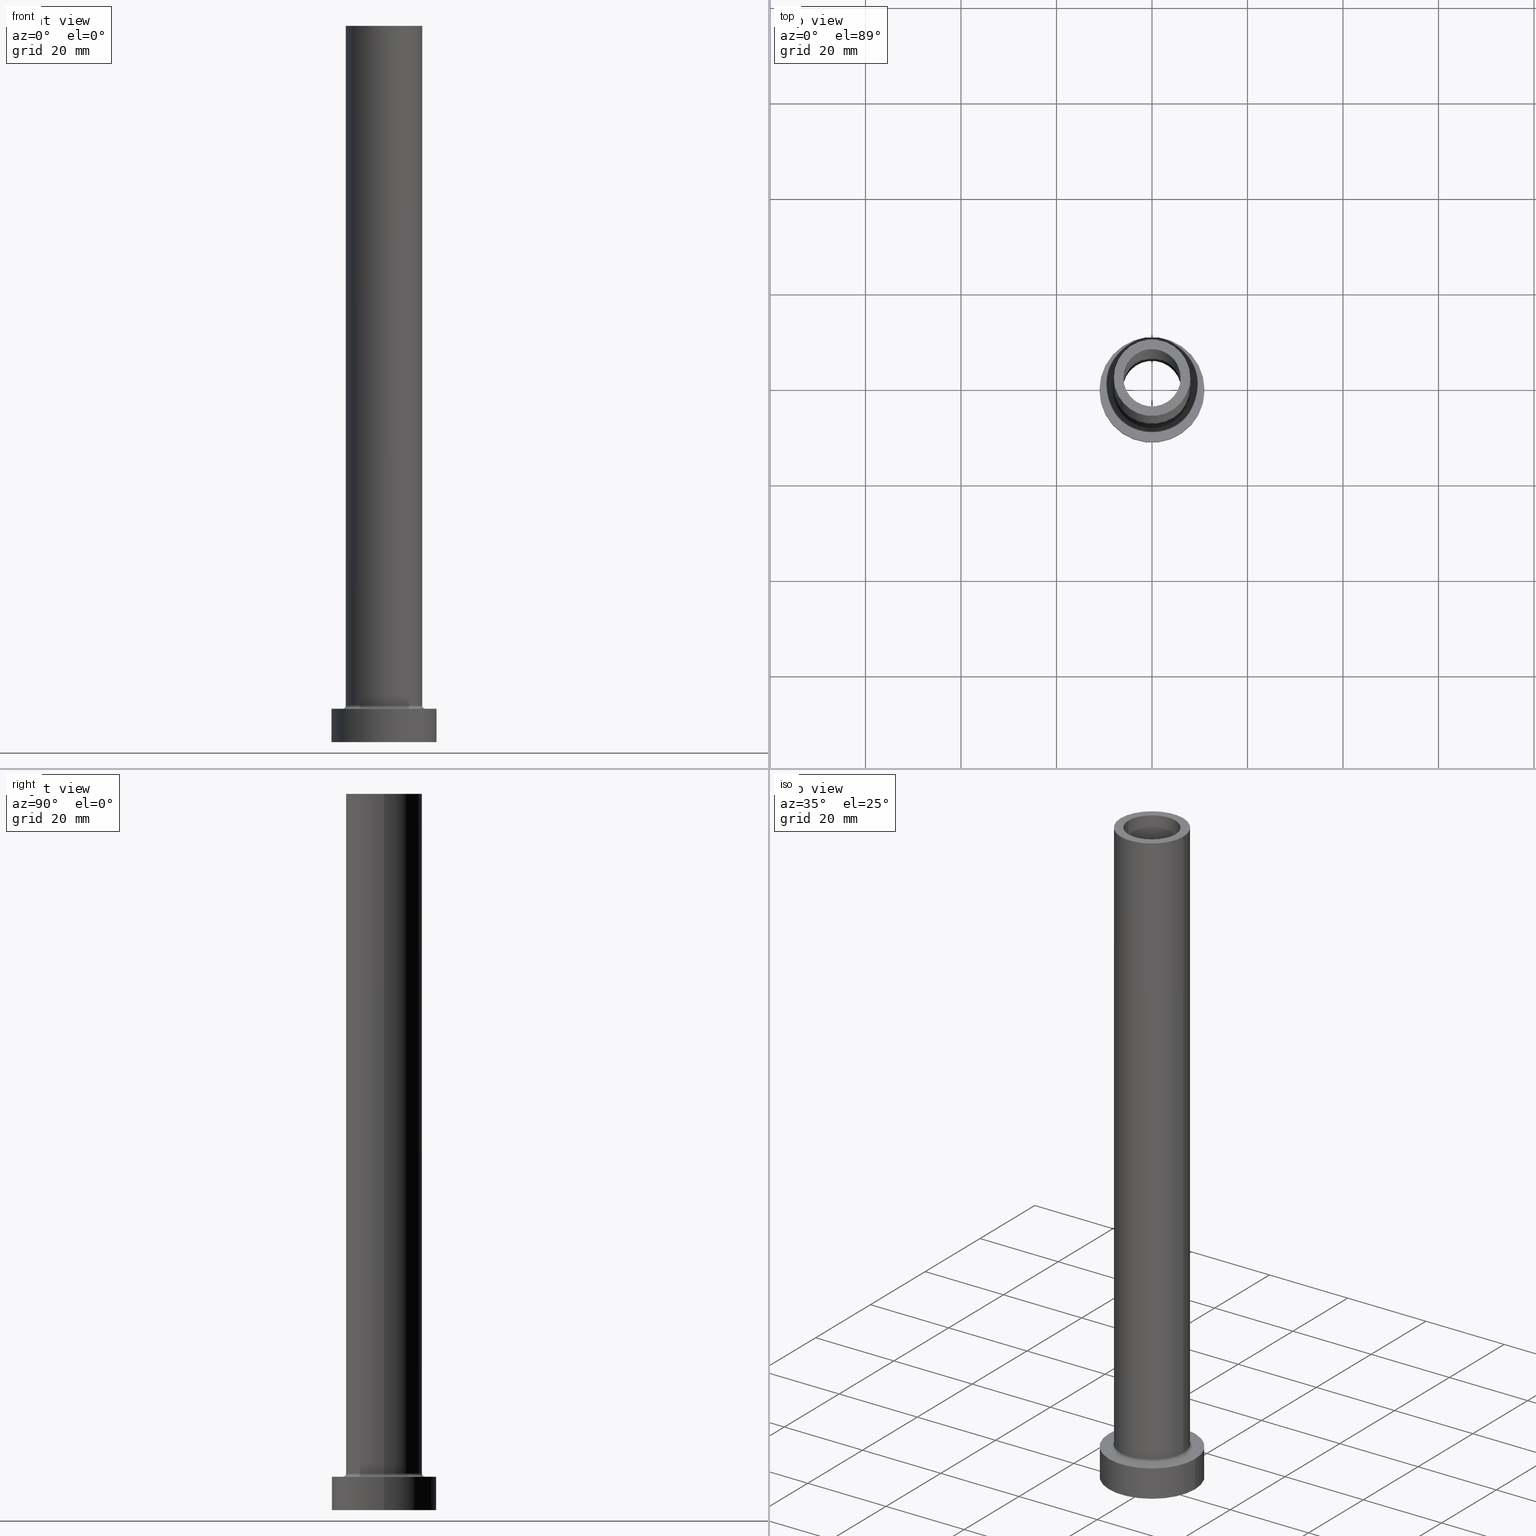
[diagram: canonical four-view strip — front | top / right | iso, engineering-drawing reading convention]
A machine part, canonical four-view strip (front | top / right | iso — engineering-drawing reading convention). The complete STEP part file that produces these views, byte-faithful:
ISO-10303-21;
HEADER;
FILE_DESCRIPTION (( 'STEP AP203' ),
    '1' );
FILE_NAME ('f595.STEP',
    '2023-02-13T09:08:36',
    ( '' ),
    ( '' ),
    'SwSTEP 2.0',
    'SolidWorks 2019',
    '' );
FILE_SCHEMA (( 'CONFIG_CONTROL_DESIGN' ));
ENDSEC;

DATA;
#1 = CARTESIAN_POINT ( 'NONE',  ( -6.000000000000000888, 0.000000000000000000, 150.0000000000000000 ) ) ;
#2 = APPLICATION_CONTEXT ( 'configuration controlled 3d designs of mechanical parts and assemblies' ) ;
#3 = AXIS2_PLACEMENT_3D ( 'NONE', #173, #224, #329 ) ;
#4 = DIRECTION ( 'NONE',  ( 0.000000000000000000, 0.000000000000000000, -1.000000000000000000 ) ) ;
#5 = CARTESIAN_POINT ( 'NONE',  ( -6.000000000000000888, 0.000000000000000000, 105.0000000000000000 ) ) ;
#6 = DATE_AND_TIME ( #33, #52 ) ;
#7 = DIRECTION ( 'NONE',  ( 1.000000000000000000, 0.000000000000000000, 0.000000000000000000 ) ) ;
#8 = VERTEX_POINT ( 'NONE', #444 ) ;
#9 = CARTESIAN_POINT ( 'NONE',  ( 0.000000000000000000, 0.000000000000000000, 0.000000000000000000 ) ) ;
#10 = ORIENTED_EDGE ( 'NONE', *, *, #281, .F. ) ;
#11 = ORIENTED_EDGE ( 'NONE', *, *, #316, .F. ) ;
#12 = DIRECTION ( 'NONE',  ( -0.000000000000000000, -0.000000000000000000, -1.000000000000000000 ) ) ;
#13 = CIRCLE ( 'NONE', #372, 0.7000000000000000666 ) ;
#14 = DIRECTION ( 'NONE',  ( 1.000000000000000000, 0.000000000000000000, 0.000000000000000000 ) ) ;
#15 = FACE_OUTER_BOUND ( 'NONE', #168, .T. ) ;
#16 = PERSON_AND_ORGANIZATION_ROLE ( 'creator' ) ;
#17 = EDGE_CURVE ( 'NONE', #146, #321, #232, .T. ) ;
#18 = FACE_OUTER_BOUND ( 'NONE', #368, .T. ) ;
#19 = COORDINATED_UNIVERSAL_TIME_OFFSET ( 1, 0, .AHEAD. ) ;
#20 = VECTOR ( 'NONE', #249, 1000.000000000000000 ) ;
#21 = DATE_AND_TIME ( #167, #119 ) ;
#22 = CIRCLE ( 'NONE', #182, 6.000000000000000888 ) ;
#23 = CARTESIAN_POINT ( 'NONE',  ( 0.000000000000000000, 0.000000000000000000, 150.0000000000000000 ) ) ;
#24 = COORDINATED_UNIVERSAL_TIME_OFFSET ( 1, 0, .AHEAD. ) ;
#25 = ORIENTED_EDGE ( 'NONE', *, *, #80, .F. ) ;
#26 = CARTESIAN_POINT ( 'NONE',  ( 0.000000000000000000, 0.000000000000000000, 150.0000000000000000 ) ) ;
#27 = ORIENTED_EDGE ( 'NONE', *, *, #231, .T. ) ;
#28 = PRODUCT_DEFINITION_FORMATION_WITH_SPECIFIED_SOURCE ( 'LIBOVOLN�', '', #131, .NOT_KNOWN. ) ;
#29 = CARTESIAN_POINT ( 'NONE',  ( 0.000000000000000000, 0.000000000000000000, 0.000000000000000000 ) ) ;
#30 = CALENDAR_DATE ( 2023, 13, 2 ) ;
#31 = AXIS2_PLACEMENT_3D ( 'NONE', #339, #12, #156 ) ;
#32 = CARTESIAN_POINT ( 'NONE',  ( 0.000000000000000000, 0.000000000000000000, 122.3948268171890703 ) ) ;
#33 = CALENDAR_DATE ( 2023, 13, 2 ) ;
#34 = CC_DESIGN_PERSON_AND_ORGANIZATION_ASSIGNMENT ( #328, #221, ( #195 ) ) ;
#35 = FACE_OUTER_BOUND ( 'NONE', #113, .T. ) ;
#36 = APPROVAL_STATUS ( 'not_yet_approved' ) ;
#37 = TOROIDAL_SURFACE ( 'NONE', #418, 8.699999999999999289, 0.6999999999999999556 ) ;
#38 = CIRCLE ( 'NONE', #84, 8.699999999999999289 ) ;
#39 = CARTESIAN_POINT ( 'NONE',  ( -6.150000000000000355, 0.000000000000000000, 105.0000000000000000 ) ) ;
#40 = ORIENTED_EDGE ( 'NONE', *, *, #152, .F. ) ;
#41 = CARTESIAN_POINT ( 'NONE',  ( 0.000000000000000000, 0.000000000000000000, 7.000000000000000000 ) ) ;
#42 = ORIENTED_EDGE ( 'NONE', *, *, #308, .F. ) ;
#43 = CARTESIAN_POINT ( 'NONE',  ( 11.00000000000000000, 1.347111479062088405E-15, 0.000000000000000000 ) ) ;
#44 = EDGE_LOOP ( 'NONE', ( #70, #153, #292, #172 ) ) ;
#45 = FACE_OUTER_BOUND ( 'NONE', #431, .T. ) ;
#46 = AXIS2_PLACEMENT_3D ( 'NONE', #26, #271, #375 ) ;
#47 = VERTEX_POINT ( 'NONE', #49 ) ;
#48 = EDGE_CURVE ( 'NONE', #110, #395, #75, .T. ) ;
#49 = CARTESIAN_POINT ( 'NONE',  ( -11.00000000000000000, 0.000000000000000000, 0.000000000000000000 ) ) ;
#50 = EDGE_CURVE ( 'NONE', #275, #401, #300, .T. ) ;
#51 = EDGE_LOOP ( 'NONE', ( #351, #25 ) ) ;
#52 = LOCAL_TIME ( 10, 8, 36.00000000000000000, #427 ) ;
#53 = VERTEX_POINT ( 'NONE', #115 ) ;
#54 = CARTESIAN_POINT ( 'NONE',  ( 6.000000000000000888, 7.347880794884119736E-16, 150.0000000000000000 ) ) ;
#55 = DIRECTION ( 'NONE',  ( 0.000000000000000000, 0.000000000000000000, 1.000000000000000000 ) ) ;
#56 = CYLINDRICAL_SURFACE ( 'NONE', #215, 8.000000000000000000 ) ;
#57 = CALENDAR_DATE ( 2023, 13, 2 ) ;
#58 = AXIS2_PLACEMENT_3D ( 'NONE', #459, #170, #127 ) ;
#59 = FACE_OUTER_BOUND ( 'NONE', #151, .T. ) ;
#60 = PRODUCT_RELATED_PRODUCT_CATEGORY ( 'detail', '', ( #131 ) ) ;
#61 = FACE_OUTER_BOUND ( 'NONE', #302, .T. ) ;
#62 = ORIENTED_EDGE ( 'NONE', *, *, #231, .F. ) ;
#63 = DIRECTION ( 'NONE',  ( 1.000000000000000000, 0.000000000000000000, 0.000000000000000000 ) ) ;
#64 = AXIS2_PLACEMENT_3D ( 'NONE', #429, #353, #220 ) ;
#65 = DIRECTION ( 'NONE',  ( 1.000000000000000000, 0.000000000000000000, 0.000000000000000000 ) ) ;
#66 = DATE_AND_TIME ( #30, #89 ) ;
#67 = EDGE_CURVE ( 'NONE', #321, #227, #218, .T. ) ;
#68 = FACE_BOUND ( 'NONE', #406, .T. ) ;
#69 = FACE_OUTER_BOUND ( 'NONE', #82, .T. ) ;
#70 = ORIENTED_EDGE ( 'NONE', *, *, #137, .F. ) ;
#71 = CIRCLE ( 'NONE', #203, 6.000000000000000888 ) ;
#72 = VECTOR ( 'NONE', #435, 1000.000000000000000 ) ;
#73 = CYLINDRICAL_SURFACE ( 'NONE', #297, 11.00000000000000000 ) ;
#74 = ORIENTED_EDGE ( 'NONE', *, *, #380, .T. ) ;
#75 = CIRCLE ( 'NONE', #31, 6.150000000000000355 ) ;
#76 = DIRECTION ( 'NONE',  ( -1.000000000000000000, 0.000000000000000000, 0.000000000000000000 ) ) ;
#77 = ORIENTED_EDGE ( 'NONE', *, *, #137, .T. ) ;
#78 = DIRECTION ( 'NONE',  ( 0.000000000000000000, 0.000000000000000000, 1.000000000000000000 ) ) ;
#79 = EDGE_LOOP ( 'NONE', ( #403, #62, #99, #383 ) ) ;
#80 = EDGE_CURVE ( 'NONE', #230, #53, #22, .T. ) ;
#81 = ORIENTED_EDGE ( 'NONE', *, *, #250, .F. ) ;
#82 = EDGE_LOOP ( 'NONE', ( #209, #334 ) ) ;
#83 = LINE ( 'NONE', #234, #86 ) ;
#84 = AXIS2_PLACEMENT_3D ( 'NONE', #97, #386, #270 ) ;
#85 = FACE_OUTER_BOUND ( 'NONE', #333, .T. ) ;
#86 = VECTOR ( 'NONE', #373, 1000.000000000000000 ) ;
#87 = DATE_AND_TIME ( #57, #338 ) ;
#88 = EDGE_CURVE ( 'NONE', #335, #47, #83, .T. ) ;
#89 = LOCAL_TIME ( 10, 8, 36.00000000000000000, #356 ) ;
#90 = DIRECTION ( 'NONE',  ( -1.000000000000000000, 0.000000000000000000, 0.000000000000000000 ) ) ;
#91 = APPROVAL_STATUS ( 'not_yet_approved' ) ;
#92 = DIRECTION ( 'NONE',  ( 1.000000000000000000, 0.000000000000000000, 0.000000000000000000 ) ) ;
#93 = AXIS2_PLACEMENT_3D ( 'NONE', #114, #402, #449 ) ;
#94 = ORIENTED_EDGE ( 'NONE', *, *, #440, .F. ) ;
#95 = DIRECTION ( 'NONE',  ( 1.000000000000000000, 0.000000000000000000, 0.000000000000000000 ) ) ;
#96 = ADVANCED_FACE ( 'NONE', ( #228, #45 ), #190, .T. ) ;
#97 = CARTESIAN_POINT ( 'NONE',  ( 0.000000000000000000, 0.000000000000000000, 7.000000000000000000 ) ) ;
#98 = AXIS2_PLACEMENT_3D ( 'NONE', #309, #349, #90 ) ;
#99 = ORIENTED_EDGE ( 'NONE', *, *, #17, .T. ) ;
#100 = CARTESIAN_POINT ( 'NONE',  ( 6.000000000000000888, 7.347880794884119736E-16, 150.0000000000000000 ) ) ;
#101 = APPLICATION_PROTOCOL_DEFINITION ( 'international standard', 'config_control_design', 1994, #2 ) ;
#102 = CARTESIAN_POINT ( 'NONE',  ( 6.150000000000000355, 7.531577814756222064E-16, 105.0000000000000000 ) ) ;
#103 = EDGE_CURVE ( 'NONE', #53, #230, #191, .T. ) ;
#104 = CIRCLE ( 'NONE', #397, 11.00000000000000000 ) ;
#105 = CARTESIAN_POINT ( 'NONE',  ( -11.00000000000000000, 0.000000000000000000, 7.000000000000000000 ) ) ;
#106 = AXIS2_PLACEMENT_3D ( 'NONE', #304, #446, #14 ) ;
#107 = CARTESIAN_POINT ( 'NONE',  ( 11.00000000000000000, 1.347111479062088405E-15, 7.000000000000000000 ) ) ;
#108 = ORIENTED_EDGE ( 'NONE', *, *, #88, .F. ) ;
#109 = LINE ( 'NONE', #393, #379 ) ;
#110 = VERTEX_POINT ( 'NONE', #320 ) ;
#111 = AXIS2_PLACEMENT_3D ( 'NONE', #9, #332, #150 ) ;
#112 = FACE_OUTER_BOUND ( 'NONE', #79, .T. ) ;
#113 = EDGE_LOOP ( 'NONE', ( #184, #264, #460, #11 ) ) ;
#114 = CARTESIAN_POINT ( 'NONE',  ( 0.000000000000000000, 0.000000000000000000, 7.000000000000000000 ) ) ;
#115 = CARTESIAN_POINT ( 'NONE',  ( -6.000000000000000888, 0.000000000000000000, 150.0000000000000000 ) ) ;
#116 = CC_DESIGN_SECURITY_CLASSIFICATION ( #195, ( #28 ) ) ;
#117 = ORIENTED_EDGE ( 'NONE', *, *, #48, .F. ) ;
#118 = CC_DESIGN_PERSON_AND_ORGANIZATION_ASSIGNMENT ( #454, #315, ( #28 ) ) ;
#119 = LOCAL_TIME ( 10, 8, 36.00000000000000000, #345 ) ;
#120 = ORIENTED_EDGE ( 'NONE', *, *, #122, .F. ) ;
#121 = DIRECTION ( 'NONE',  ( -0.000000000000000000, -0.000000000000000000, -1.000000000000000000 ) ) ;
#122 = EDGE_CURVE ( 'NONE', #230, #401, #210, .T. ) ;
#123 = VERTEX_POINT ( 'NONE', #126 ) ;
#124 = DIRECTION ( 'NONE',  ( 1.000000000000000000, 0.000000000000000000, -0.000000000000000000 ) ) ;
#125 = ADVANCED_FACE ( 'NONE', ( #18 ), #344, .F. ) ;
#126 = CARTESIAN_POINT ( 'NONE',  ( 8.699999999999999289, 0.000000000000000000, 7.000000000000006217 ) ) ;
#127 = DIRECTION ( 'NONE',  ( 1.000000000000000000, 0.000000000000000000, 0.000000000000000000 ) ) ;
#128 = DIRECTION ( 'NONE',  ( 0.000000000000000000, 0.000000000000000000, -1.000000000000000000 ) ) ;
#129 = PERSON_AND_ORGANIZATION_ROLE ( 'design_owner' ) ;
#130 = CC_DESIGN_PERSON_AND_ORGANIZATION_ASSIGNMENT ( #134, #279, ( #28 ) ) ;
#131 = PRODUCT ( 'f595', 'f595', '', ( #208 ) ) ;
#132 = DIRECTION ( 'NONE',  ( 0.000000000000000000, 0.000000000000000000, 1.000000000000000000 ) ) ;
#133 = AXIS2_PLACEMENT_3D ( 'NONE', #347, #314, #455 ) ;
#134 = PERSON_AND_ORGANIZATION ( #174, #262 ) ;
#135 = MANIFOLD_SOLID_BREP ( 'Odebrat vysunut�m4', #392 ) ;
#136 = DIRECTION ( 'NONE',  ( 1.000000000000000000, 0.000000000000000000, 0.000000000000000000 ) ) ;
#137 = EDGE_CURVE ( 'NONE', #321, #213, #312, .T. ) ;
#138 = ORIENTED_EDGE ( 'NONE', *, *, #288, .T. ) ;
#139 = ADVANCED_FACE ( 'NONE', ( #85 ), #56, .T. ) ;
#140 = CARTESIAN_POINT ( 'NONE',  ( 0.000000000000000000, 0.000000000000000000, 150.0000000000000000 ) ) ;
#141 = CYLINDRICAL_SURFACE ( 'NONE', #178, 6.150000000000000355 ) ;
#142 = LINE ( 'NONE', #286, #20 ) ;
#143 = APPROVAL_DATE_TIME ( #66, #197 ) ;
#144 = CARTESIAN_POINT ( 'NONE',  ( 0.000000000000000000, 0.000000000000000000, 0.000000000000000000 ) ) ;
#145 = DATE_TIME_ROLE ( 'classification_date' ) ;
#146 = VERTEX_POINT ( 'NONE', #269 ) ;
#147 = ADVANCED_FACE ( 'NONE', ( #453, #61 ), #278, .F. ) ;
#148 = DIRECTION ( 'NONE',  ( -0.000000000000000000, -0.000000000000000000, -1.000000000000000000 ) ) ;
#149 = ORIENTED_EDGE ( 'NONE', *, *, #265, .T. ) ;
#150 = DIRECTION ( 'NONE',  ( 1.000000000000000000, 0.000000000000000000, 0.000000000000000000 ) ) ;
#151 = EDGE_LOOP ( 'NONE', ( #120, #196, #447, #317 ) ) ;
#152 = EDGE_CURVE ( 'NONE', #8, #146, #276, .T. ) ;
#153 = ORIENTED_EDGE ( 'NONE', *, *, #202, .F. ) ;
#154 = ORIENTED_EDGE ( 'NONE', *, *, #48, .T. ) ;
#155 = AXIS2_PLACEMENT_3D ( 'NONE', #212, #283, #412 ) ;
#156 = DIRECTION ( 'NONE',  ( 1.000000000000000000, 0.000000000000000000, 0.000000000000000000 ) ) ;
#157 = DIRECTION ( 'NONE',  ( 1.000000000000000000, 0.000000000000000000, 0.000000000000000000 ) ) ;
#158 = CYLINDRICAL_SURFACE ( 'NONE', #3, 11.00000000000000000 ) ;
#159 = DATE_TIME_ROLE ( 'creation_date' ) ;
#160 = CIRCLE ( 'NONE', #443, 11.00000000000000000 ) ;
#161 = CARTESIAN_POINT ( 'NONE',  ( 0.000000000000000000, 0.000000000000000000, 150.0000000000000000 ) ) ;
#162 = EDGE_CURVE ( 'NONE', #361, #408, #385, .T. ) ;
#163 = CARTESIAN_POINT ( 'NONE',  ( 0.000000000000000000, 0.000000000000000000, 7.700000000000012612 ) ) ;
#164 = AXIS2_PLACEMENT_3D ( 'NONE', #200, #311, #448 ) ;
#165 = APPROVAL_DATE_TIME ( #21, #367 ) ;
#166 = CARTESIAN_POINT ( 'NONE',  ( 0.000000000000000000, 0.000000000000000000, 7.700000000000012612 ) ) ;
#167 = CALENDAR_DATE ( 2023, 13, 2 ) ;
#168 = EDGE_LOOP ( 'NONE', ( #261, #81, #371, #74 ) ) ;
#169 = FACE_OUTER_BOUND ( 'NONE', #225, .T. ) ;
#170 = DIRECTION ( 'NONE',  ( 0.000000000000000000, 0.000000000000000000, 1.000000000000000000 ) ) ;
#171 = AXIS2_PLACEMENT_3D ( 'NONE', #391, #251, #217 ) ;
#172 = ORIENTED_EDGE ( 'NONE', *, *, #415, .F. ) ;
#173 = CARTESIAN_POINT ( 'NONE',  ( 0.000000000000000000, 0.000000000000000000, 7.000000000000000000 ) ) ;
#174 = PERSON ( 'NEUR�EN�', 'NEUR�EN�', 'NEUR�EN�', ('NEUR�EN�'), ('NEUR�EN�'), ('NEUR�EN�') ) ;
#175 = DIRECTION ( 'NONE',  ( -1.000000000000000000, 0.000000000000000000, 0.000000000000000000 ) ) ;
#176 = SHAPE_DEFINITION_REPRESENTATION ( #274, #405 ) ;
#177 = DIRECTION ( 'NONE',  ( 0.000000000000000000, 0.000000000000000000, 1.000000000000000000 ) ) ;
#178 = AXIS2_PLACEMENT_3D ( 'NONE', #32, #4, #291 ) ;
#179 = AXIS2_PLACEMENT_3D ( 'NONE', #357, #177, #185 ) ;
#180 = PLANE ( 'NONE',  #64 ) ;
#181 = ORIENTED_EDGE ( 'NONE', *, *, #250, .T. ) ;
#182 = AXIS2_PLACEMENT_3D ( 'NONE', #365, #307, #267 ) ;
#183 = DIRECTION ( 'NONE',  ( -0.000000000000000000, -0.000000000000000000, -1.000000000000000000 ) ) ;
#184 = ORIENTED_EDGE ( 'NONE', *, *, #440, .T. ) ;
#185 = DIRECTION ( 'NONE',  ( 1.000000000000000000, 0.000000000000000000, -0.000000000000000000 ) ) ;
#186 = ORIENTED_EDGE ( 'NONE', *, *, #216, .F. ) ;
#187 = CIRCLE ( 'NONE', #390, 11.00000000000000000 ) ;
#188 = EDGE_CURVE ( 'NONE', #401, #275, #71, .T. ) ;
#189 = ADVANCED_FACE ( 'NONE', ( #169 ), #37, .F. ) ;
#190 = PLANE ( 'NONE',  #290 ) ;
#191 = CIRCLE ( 'NONE', #46, 6.000000000000000888 ) ;
#192 = ORIENTED_EDGE ( 'NONE', *, *, #162, .T. ) ;
#193 = ORIENTED_EDGE ( 'NONE', *, *, #122, .T. ) ;
#194 = CIRCLE ( 'NONE', #324, 6.150000000000000355 ) ;
#195 = SECURITY_CLASSIFICATION ( '', '', #422 ) ;
#196 = ORIENTED_EDGE ( 'NONE', *, *, #80, .T. ) ;
#197 = APPROVAL ( #36, 'NEUR�EN�' ) ;
#198 = EDGE_LOOP ( 'NONE', ( #42, #192, #149, #108 ) ) ;
#199 =( NAMED_UNIT ( * ) PLANE_ANGLE_UNIT ( ) SI_UNIT ( $, .RADIAN. ) );
#200 = CARTESIAN_POINT ( 'NONE',  ( -8.699999999999999289, 1.065442715258197248E-15, 7.700000000000012612 ) ) ;
#201 = FACE_OUTER_BOUND ( 'NONE', #44, .T. ) ;
#202 = EDGE_CURVE ( 'NONE', #227, #321, #318, .T. ) ;
#203 = AXIS2_PLACEMENT_3D ( 'NONE', #204, #417, #95 ) ;
#204 = CARTESIAN_POINT ( 'NONE',  ( 0.000000000000000000, 0.000000000000000000, 105.0000000000000000 ) ) ;
#205 = PERSON_AND_ORGANIZATION ( #174, #262 ) ;
#206 = CYLINDRICAL_SURFACE ( 'NONE', #133, 6.000000000000000888 ) ;
#207 = VECTOR ( 'NONE', #121, 1000.000000000000000 ) ;
#208 = MECHANICAL_CONTEXT ( 'NONE', #425, 'mechanical' ) ;
#209 = ORIENTED_EDGE ( 'NONE', *, *, #380, .F. ) ;
#210 = LINE ( 'NONE', #54, #305 ) ;
#211 = ADVANCED_FACE ( 'NONE', ( #59 ), #206, .F. ) ;
#212 = CARTESIAN_POINT ( 'NONE',  ( 0.000000000000000000, 0.000000000000000000, 0.000000000000000000 ) ) ;
#213 = VERTEX_POINT ( 'NONE', #241 ) ;
#214 = CARTESIAN_POINT ( 'NONE',  ( 0.000000000000000000, 0.000000000000000000, 105.0000000000000000 ) ) ;
#215 = AXIS2_PLACEMENT_3D ( 'NONE', #23, #413, #237 ) ;
#216 = EDGE_CURVE ( 'NONE', #331, #364, #428, .T. ) ;
#217 = DIRECTION ( 'NONE',  ( -1.000000000000000000, 0.000000000000000000, 0.000000000000000000 ) ) ;
#218 = CIRCLE ( 'NONE', #384, 8.000000000000000000 ) ;
#219 = PLANE ( 'NONE',  #179 ) ;
#220 = DIRECTION ( 'NONE',  ( 1.000000000000000000, 0.000000000000000000, -0.000000000000000000 ) ) ;
#221 = PERSON_AND_ORGANIZATION_ROLE ( 'classification_officer' ) ;
#222 = ORIENTED_EDGE ( 'NONE', *, *, #67, .F. ) ;
#223 = APPROVAL_PERSON_ORGANIZATION ( #205, #367, #236 ) ;
#224 = DIRECTION ( 'NONE',  ( -0.000000000000000000, -0.000000000000000000, -1.000000000000000000 ) ) ;
#225 = EDGE_LOOP ( 'NONE', ( #222, #77, #407, #296 ) ) ;
#226 = DIRECTION ( 'NONE',  ( 0.000000000000000000, 0.000000000000000000, -1.000000000000000000 ) ) ;
#227 = VERTEX_POINT ( 'NONE', #424 ) ;
#228 = FACE_BOUND ( 'NONE', #51, .T. ) ;
#229 = ORIENTED_EDGE ( 'NONE', *, *, #202, .T. ) ;
#230 = VERTEX_POINT ( 'NONE', #100 ) ;
#231 = EDGE_CURVE ( 'NONE', #146, #8, #410, .T. ) ;
#232 = LINE ( 'NONE', #369, #207 ) ;
#233 = ADVANCED_FACE ( 'NONE', ( #15 ), #158, .T. ) ;
#234 = CARTESIAN_POINT ( 'NONE',  ( -11.00000000000000000, 0.000000000000000000, 7.000000000000000000 ) ) ;
#235 = DIRECTION ( 'NONE',  ( -0.000000000000000000, -0.000000000000000000, -1.000000000000000000 ) ) ;
#236 = APPROVAL_ROLE ( '' ) ;
#237 = DIRECTION ( 'NONE',  ( -1.000000000000000000, 0.000000000000000000, 0.000000000000000000 ) ) ;
#238 = PERSON_AND_ORGANIZATION ( #174, #262 ) ;
#239 = CIRCLE ( 'NONE', #93, 8.699999999999999289 ) ;
#240 = DIRECTION ( 'NONE',  ( 0.000000000000000000, 0.000000000000000000, 1.000000000000000000 ) ) ;
#241 = CARTESIAN_POINT ( 'NONE',  ( -8.699999999999999289, 1.065442715258197248E-15, 7.000000000000006217 ) ) ;
#242 = APPROVAL_STATUS ( 'not_yet_approved' ) ;
#243 = ADVANCED_FACE ( 'NONE', ( #246, #69 ), #180, .F. ) ;
#244 = CARTESIAN_POINT ( 'NONE',  ( 0.000000000000000000, 0.000000000000000000, 150.0000000000000000 ) ) ;
#245 = APPROVAL_ROLE ( '' ) ;
#246 = FACE_BOUND ( 'NONE', #442, .T. ) ;
#247 = AXIS2_PLACEMENT_3D ( 'NONE', #342, #272, #124 ) ;
#248 = APPROVAL_ROLE ( '' ) ;
#249 = DIRECTION ( 'NONE',  ( 0.000000000000000000, 0.000000000000000000, -1.000000000000000000 ) ) ;
#250 = EDGE_CURVE ( 'NONE', #335, #361, #187, .T. ) ;
#251 = DIRECTION ( 'NONE',  ( 0.000000000000000000, 0.000000000000000000, -1.000000000000000000 ) ) ;
#252 = EDGE_LOOP ( 'NONE', ( #181, #433 ) ) ;
#253 = CYLINDRICAL_SURFACE ( 'NONE', #366, 8.000000000000000000 ) ;
#254 = ORIENTED_EDGE ( 'NONE', *, *, #17, .F. ) ;
#255 = VECTOR ( 'NONE', #394, 1000.000000000000000 ) ;
#256 = FACE_OUTER_BOUND ( 'NONE', #252, .T. ) ;
#257 = PRODUCT_DEFINITION ( 'NEZN�M�', '', #28, #438 ) ;
#258 = EDGE_LOOP ( 'NONE', ( #299, #437, #387, #154 ) ) ;
#259 = DIRECTION ( 'NONE',  ( 0.000000000000000000, -1.000000000000000000, 0.000000000000000000 ) ) ;
#260 = CARTESIAN_POINT ( 'NONE',  ( 0.000000000000000000, 0.000000000000000000, 7.700000000000012612 ) ) ;
#261 = ORIENTED_EDGE ( 'NONE', *, *, #162, .F. ) ;
#262 = ORGANIZATION ( 'NEUR�EN�', 'NEUR�EN�', '' ) ;
#263 = ORIENTED_EDGE ( 'NONE', *, *, #50, .T. ) ;
#264 = ORIENTED_EDGE ( 'NONE', *, *, #360, .T. ) ;
#265 = EDGE_CURVE ( 'NONE', #408, #47, #104, .T. ) ;
#266 = APPROVAL_PERSON_ORGANIZATION ( #330, #197, #248 ) ;
#267 = DIRECTION ( 'NONE',  ( 1.000000000000000000, 0.000000000000000000, 0.000000000000000000 ) ) ;
#268 = CC_DESIGN_PERSON_AND_ORGANIZATION_ASSIGNMENT ( #341, #16, ( #257 ) ) ;
#269 = CARTESIAN_POINT ( 'NONE',  ( -8.000000000000000000, 0.000000000000000000, 150.0000000000000000 ) ) ;
#270 = DIRECTION ( 'NONE',  ( 1.000000000000000000, 0.000000000000000000, 0.000000000000000000 ) ) ;
#271 = DIRECTION ( 'NONE',  ( 0.000000000000000000, 0.000000000000000000, 1.000000000000000000 ) ) ;
#272 = DIRECTION ( 'NONE',  ( 0.000000000000000000, 0.000000000000000000, 1.000000000000000000 ) ) ;
#273 = DATE_AND_TIME ( #348, #420 ) ;
#274 = PRODUCT_DEFINITION_SHAPE ( 'NONE', 'NONE',  #257 ) ;
#275 = VERTEX_POINT ( 'NONE', #5 ) ;
#276 = CIRCLE ( 'NONE', #352, 8.000000000000000000 ) ;
#277 = APPROVAL_PERSON_ORGANIZATION ( #238, #450, #245 ) ;
#278 = PLANE ( 'NONE',  #247 ) ;
#279 = PERSON_AND_ORGANIZATION_ROLE ( 'design_supplier' ) ;
#280 = EDGE_LOOP ( 'NONE', ( #263, #409 ) ) ;
#281 = EDGE_CURVE ( 'NONE', #395, #110, #194, .T. ) ;
#282 = DIRECTION ( 'NONE',  ( 1.000000000000000000, 0.000000000000000000, -0.000000000000000000 ) ) ;
#283 = DIRECTION ( 'NONE',  ( 0.000000000000000000, 0.000000000000000000, 1.000000000000000000 ) ) ;
#284 = ORIENTED_EDGE ( 'NONE', *, *, #103, .T. ) ;
#285 = DIRECTION ( 'NONE',  ( -0.000000000000000000, -0.000000000000000000, -1.000000000000000000 ) ) ;
#286 = CARTESIAN_POINT ( 'NONE',  ( -6.150000000000000355, 0.000000000000000000, 122.3948268171890703 ) ) ;
#287 = VECTOR ( 'NONE', #235, 1000.000000000000000 ) ;
#288 = EDGE_CURVE ( 'NONE', #8, #227, #359, .T. ) ;
#289 = CARTESIAN_POINT ( 'NONE',  ( 0.000000000000000000, 0.000000000000000000, 7.000000000000000000 ) ) ;
#290 = AXIS2_PLACEMENT_3D ( 'NONE', #451, #132, #282 ) ;
#291 = DIRECTION ( 'NONE',  ( -1.000000000000000000, 0.000000000000000000, 0.000000000000000000 ) ) ;
#292 = ORIENTED_EDGE ( 'NONE', *, *, #396, .T. ) ;
#293 = ADVANCED_FACE ( 'NONE', ( #112 ), #253, .T. ) ;
#294 = UNCERTAINTY_MEASURE_WITH_UNIT (LENGTH_MEASURE( 1.000000000000000082E-05 ), #382, 'distance_accuracy_value', 'NONE');
#295 = DIRECTION ( 'NONE',  ( 0.000000000000000000, 0.000000000000000000, 1.000000000000000000 ) ) ;
#296 = ORIENTED_EDGE ( 'NONE', *, *, #396, .F. ) ;
#297 = AXIS2_PLACEMENT_3D ( 'NONE', #41, #183, #175 ) ;
#298 = CARTESIAN_POINT ( 'NONE',  ( 6.150000000000000355, 7.531577814756222064E-16, 0.000000000000000000 ) ) ;
#299 = ORIENTED_EDGE ( 'NONE', *, *, #360, .F. ) ;
#300 = CIRCLE ( 'NONE', #106, 6.000000000000000888 ) ;
#301 = ORIENTED_EDGE ( 'NONE', *, *, #415, .T. ) ;
#302 = EDGE_LOOP ( 'NONE', ( #94, #186 ) ) ;
#303 = CIRCLE ( 'NONE', #58, 6.150000000000000355 ) ;
#304 = CARTESIAN_POINT ( 'NONE',  ( 0.000000000000000000, 0.000000000000000000, 105.0000000000000000 ) ) ;
#305 = VECTOR ( 'NONE', #128, 1000.000000000000000 ) ;
#306 = ADVANCED_FACE ( 'NONE', ( #426 ), #141, .F. ) ;
#307 = DIRECTION ( 'NONE',  ( 0.000000000000000000, 0.000000000000000000, 1.000000000000000000 ) ) ;
#308 = EDGE_CURVE ( 'NONE', #361, #335, #160, .T. ) ;
#309 = CARTESIAN_POINT ( 'NONE',  ( 0.000000000000000000, 0.000000000000000000, 150.0000000000000000 ) ) ;
#310 = DIRECTION ( 'NONE',  ( 1.000000000000000000, 0.000000000000000000, 0.000000000000000000 ) ) ;
#311 = DIRECTION ( 'NONE',  ( 1.224646799147353207E-16, 1.000000000000000000, -0.000000000000000000 ) ) ;
#312 = CIRCLE ( 'NONE', #164, 0.6999999999999992895 ) ;
#313 = DIRECTION ( 'NONE',  ( 0.000000000000000000, 0.000000000000000000, 1.000000000000000000 ) ) ;
#314 = DIRECTION ( 'NONE',  ( 0.000000000000000000, 0.000000000000000000, -1.000000000000000000 ) ) ;
#315 = PERSON_AND_ORGANIZATION_ROLE ( 'creator' ) ;
#316 = EDGE_CURVE ( 'NONE', #364, #110, #142, .T. ) ;
#317 = ORIENTED_EDGE ( 'NONE', *, *, #188, .F. ) ;
#318 = CIRCLE ( 'NONE', #456, 8.000000000000000000 ) ;
#319 = AXIS2_PLACEMENT_3D ( 'NONE', #376, #55, #310 ) ;
#320 = CARTESIAN_POINT ( 'NONE',  ( -6.150000000000000355, 0.000000000000000000, 0.000000000000000000 ) ) ;
#321 = VERTEX_POINT ( 'NONE', #398 ) ;
#322 = CARTESIAN_POINT ( 'NONE',  ( 0.000000000000000000, 0.000000000000000000, 7.000000000000000000 ) ) ;
#323 = LINE ( 'NONE', #1, #72 ) ;
#324 = AXIS2_PLACEMENT_3D ( 'NONE', #144, #148, #7 ) ;
#325 = CARTESIAN_POINT ( 'NONE',  ( 8.000000000000000000, 9.797174393178825657E-16, 150.0000000000000000 ) ) ;
#326 = TOROIDAL_SURFACE ( 'NONE', #319, 8.699999999999999289, 0.6999999999999999556 ) ;
#327 = DIRECTION ( 'NONE',  ( 1.000000000000000000, 0.000000000000000000, 0.000000000000000000 ) ) ;
#328 = PERSON_AND_ORGANIZATION ( #174, #262 ) ;
#329 = DIRECTION ( 'NONE',  ( -1.000000000000000000, 0.000000000000000000, 0.000000000000000000 ) ) ;
#330 = PERSON_AND_ORGANIZATION ( #174, #262 ) ;
#331 = VERTEX_POINT ( 'NONE', #102 ) ;
#332 = DIRECTION ( 'NONE',  ( 0.000000000000000000, 0.000000000000000000, 1.000000000000000000 ) ) ;
#333 = EDGE_LOOP ( 'NONE', ( #40, #138, #229, #254 ) ) ;
#334 = ORIENTED_EDGE ( 'NONE', *, *, #265, .F. ) ;
#335 = VERTEX_POINT ( 'NONE', #105 ) ;
#336 = ORIENTED_EDGE ( 'NONE', *, *, #152, .T. ) ;
#337 = AXIS2_PLACEMENT_3D ( 'NONE', #244, #388, #63 ) ;
#338 = LOCAL_TIME ( 10, 8, 36.00000000000000000, #24 ) ;
#339 = CARTESIAN_POINT ( 'NONE',  ( 0.000000000000000000, 0.000000000000000000, 0.000000000000000000 ) ) ;
#340 = ORIENTED_EDGE ( 'NONE', *, *, #370, .F. ) ;
#341 = PERSON_AND_ORGANIZATION ( #174, #262 ) ;
#342 = CARTESIAN_POINT ( 'NONE',  ( 0.000000000000000000, 0.000000000000000000, 105.0000000000000000 ) ) ;
#343 = ADVANCED_FACE ( 'NONE', ( #35 ), #430, .F. ) ;
#344 = CYLINDRICAL_SURFACE ( 'NONE', #98, 6.000000000000000888 ) ;
#345 = COORDINATED_UNIVERSAL_TIME_OFFSET ( 1, 0, .AHEAD. ) ;
#346 = CC_DESIGN_DATE_AND_TIME_ASSIGNMENT ( #87, #159, ( #257 ) ) ;
#347 = CARTESIAN_POINT ( 'NONE',  ( 0.000000000000000000, 0.000000000000000000, 150.0000000000000000 ) ) ;
#348 = CALENDAR_DATE ( 2023, 13, 2 ) ;
#349 = DIRECTION ( 'NONE',  ( 0.000000000000000000, 0.000000000000000000, -1.000000000000000000 ) ) ;
#350 =( NAMED_UNIT ( * ) SI_UNIT ( $, .STERADIAN. ) SOLID_ANGLE_UNIT ( ) );
#351 = ORIENTED_EDGE ( 'NONE', *, *, #103, .F. ) ;
#352 = AXIS2_PLACEMENT_3D ( 'NONE', #161, #411, #377 ) ;
#353 = DIRECTION ( 'NONE',  ( 0.000000000000000000, 0.000000000000000000, 1.000000000000000000 ) ) ;
#354 = CC_DESIGN_PERSON_AND_ORGANIZATION_ASSIGNMENT ( #389, #129, ( #131 ) ) ;
#355 = DIRECTION ( 'NONE',  ( 0.000000000000000000, 0.000000000000000000, -1.000000000000000000 ) ) ;
#356 = COORDINATED_UNIVERSAL_TIME_OFFSET ( 1, 0, .AHEAD. ) ;
#357 = CARTESIAN_POINT ( 'NONE',  ( 0.000000000000000000, 0.000000000000000000, 7.000000000000000000 ) ) ;
#358 = FACE_OUTER_BOUND ( 'NONE', #198, .T. ) ;
#359 = LINE ( 'NONE', #325, #255 ) ;
#360 = EDGE_CURVE ( 'NONE', #331, #395, #109, .T. ) ;
#361 = VERTEX_POINT ( 'NONE', #107 ) ;
#362 = ADVANCED_FACE ( 'NONE', ( #358 ), #73, .T. ) ;
#363 = CARTESIAN_POINT ( 'NONE',  ( 6.000000000000000888, 7.347880794884119736E-16, 105.0000000000000000 ) ) ;
#364 = VERTEX_POINT ( 'NONE', #39 ) ;
#365 = CARTESIAN_POINT ( 'NONE',  ( 0.000000000000000000, 0.000000000000000000, 150.0000000000000000 ) ) ;
#366 = AXIS2_PLACEMENT_3D ( 'NONE', #140, #285, #76 ) ;
#367 = APPROVAL ( #242, 'NEUR�EN�' ) ;
#368 = EDGE_LOOP ( 'NONE', ( #284, #193, #419, #340 ) ) ;
#369 = CARTESIAN_POINT ( 'NONE',  ( -8.000000000000000000, 0.000000000000000000, 150.0000000000000000 ) ) ;
#370 = EDGE_CURVE ( 'NONE', #53, #275, #323, .T. ) ;
#371 = ORIENTED_EDGE ( 'NONE', *, *, #88, .T. ) ;
#372 = AXIS2_PLACEMENT_3D ( 'NONE', #439, #259, #226 ) ;
#373 = DIRECTION ( 'NONE',  ( -0.000000000000000000, -0.000000000000000000, -1.000000000000000000 ) ) ;
#374 = ADVANCED_FACE ( 'NONE', ( #68, #256 ), #219, .T. ) ;
#375 = DIRECTION ( 'NONE',  ( 1.000000000000000000, 0.000000000000000000, 0.000000000000000000 ) ) ;
#376 = CARTESIAN_POINT ( 'NONE',  ( 0.000000000000000000, 0.000000000000000000, 7.700000000000012612 ) ) ;
#377 = DIRECTION ( 'NONE',  ( 1.000000000000000000, 0.000000000000000000, 0.000000000000000000 ) ) ;
#378 = APPROVAL_DATE_TIME ( #273, #450 ) ;
#379 = VECTOR ( 'NONE', #355, 1000.000000000000000 ) ;
#380 = EDGE_CURVE ( 'NONE', #47, #408, #445, .T. ) ;
#381 = DIRECTION ( 'NONE',  ( 1.000000000000000000, 0.000000000000000000, 0.000000000000000000 ) ) ;
#382 =( LENGTH_UNIT ( ) NAMED_UNIT ( * ) SI_UNIT ( .MILLI., .METRE. ) );
#383 = ORIENTED_EDGE ( 'NONE', *, *, #67, .T. ) ;
#384 = AXIS2_PLACEMENT_3D ( 'NONE', #260, #78, #157 ) ;
#385 = LINE ( 'NONE', #421, #287 ) ;
#386 = DIRECTION ( 'NONE',  ( -0.000000000000000000, -0.000000000000000000, -1.000000000000000000 ) ) ;
#387 = ORIENTED_EDGE ( 'NONE', *, *, #316, .T. ) ;
#388 = DIRECTION ( 'NONE',  ( 0.000000000000000000, 0.000000000000000000, 1.000000000000000000 ) ) ;
#389 = PERSON_AND_ORGANIZATION ( #174, #262 ) ;
#390 = AXIS2_PLACEMENT_3D ( 'NONE', #322, #461, #400 ) ;
#391 = CARTESIAN_POINT ( 'NONE',  ( 0.000000000000000000, 0.000000000000000000, 122.3948268171890703 ) ) ;
#392 = CLOSED_SHELL ( 'NONE', ( #125, #343, #189, #139, #362, #233, #374, #243, #293, #96, #423, #306, #147, #211 ) ) ;
#393 = CARTESIAN_POINT ( 'NONE',  ( 6.150000000000000355, 7.531577814756222064E-16, 122.3948268171890703 ) ) ;
#394 = DIRECTION ( 'NONE',  ( -0.000000000000000000, -0.000000000000000000, -1.000000000000000000 ) ) ;
#395 = VERTEX_POINT ( 'NONE', #298 ) ;
#396 = EDGE_CURVE ( 'NONE', #227, #123, #13, .T. ) ;
#397 = AXIS2_PLACEMENT_3D ( 'NONE', #29, #295, #327 ) ;
#398 = CARTESIAN_POINT ( 'NONE',  ( -8.000000000000000000, 0.000000000000000000, 7.700000000000012612 ) ) ;
#399 = CC_DESIGN_APPROVAL ( #367, ( #28 ) ) ;
#400 = DIRECTION ( 'NONE',  ( 1.000000000000000000, 0.000000000000000000, 0.000000000000000000 ) ) ;
#401 = VERTEX_POINT ( 'NONE', #363 ) ;
#402 = DIRECTION ( 'NONE',  ( -0.000000000000000000, -0.000000000000000000, -1.000000000000000000 ) ) ;
#403 = ORIENTED_EDGE ( 'NONE', *, *, #288, .F. ) ;
#404 = CC_DESIGN_DATE_AND_TIME_ASSIGNMENT ( #6, #145, ( #195 ) ) ;
#405 = ADVANCED_BREP_SHAPE_REPRESENTATION ( 'f595', ( #135, #155 ), #436 ) ;
#406 = EDGE_LOOP ( 'NONE', ( #441, #301 ) ) ;
#407 = ORIENTED_EDGE ( 'NONE', *, *, #416, .F. ) ;
#408 = VERTEX_POINT ( 'NONE', #43 ) ;
#409 = ORIENTED_EDGE ( 'NONE', *, *, #188, .T. ) ;
#410 = CIRCLE ( 'NONE', #337, 8.000000000000000000 ) ;
#411 = DIRECTION ( 'NONE',  ( 0.000000000000000000, 0.000000000000000000, 1.000000000000000000 ) ) ;
#412 = DIRECTION ( 'NONE',  ( 1.000000000000000000, 0.000000000000000000, 0.000000000000000000 ) ) ;
#413 = DIRECTION ( 'NONE',  ( -0.000000000000000000, -0.000000000000000000, -1.000000000000000000 ) ) ;
#414 = CC_DESIGN_APPROVAL ( #197, ( #195 ) ) ;
#415 = EDGE_CURVE ( 'NONE', #213, #123, #239, .T. ) ;
#416 = EDGE_CURVE ( 'NONE', #123, #213, #38, .T. ) ;
#417 = DIRECTION ( 'NONE',  ( 0.000000000000000000, 0.000000000000000000, 1.000000000000000000 ) ) ;
#418 = AXIS2_PLACEMENT_3D ( 'NONE', #166, #313, #92 ) ;
#419 = ORIENTED_EDGE ( 'NONE', *, *, #50, .F. ) ;
#420 = LOCAL_TIME ( 10, 8, 36.00000000000000000, #19 ) ;
#421 = CARTESIAN_POINT ( 'NONE',  ( 11.00000000000000000, 1.347111479062088405E-15, 7.000000000000000000 ) ) ;
#422 = SECURITY_CLASSIFICATION_LEVEL ( 'unclassified' ) ;
#423 = ADVANCED_FACE ( 'NONE', ( #201 ), #326, .F. ) ;
#424 = CARTESIAN_POINT ( 'NONE',  ( 8.000000000000000000, 9.797174393178825657E-16, 7.700000000000012612 ) ) ;
#425 = APPLICATION_CONTEXT ( 'configuration controlled 3d designs of mechanical parts and assemblies' ) ;
#426 = FACE_OUTER_BOUND ( 'NONE', #258, .T. ) ;
#427 = COORDINATED_UNIVERSAL_TIME_OFFSET ( 1, 0, .AHEAD. ) ;
#428 = CIRCLE ( 'NONE', #434, 6.150000000000000355 ) ;
#429 = CARTESIAN_POINT ( 'NONE',  ( 0.000000000000000000, 0.000000000000000000, 0.000000000000000000 ) ) ;
#430 = CYLINDRICAL_SURFACE ( 'NONE', #171, 6.150000000000000355 ) ;
#431 = EDGE_LOOP ( 'NONE', ( #27, #336 ) ) ;
#432 = DIRECTION ( 'NONE',  ( 0.000000000000000000, 0.000000000000000000, 1.000000000000000000 ) ) ;
#433 = ORIENTED_EDGE ( 'NONE', *, *, #308, .T. ) ;
#434 = AXIS2_PLACEMENT_3D ( 'NONE', #214, #458, #136 ) ;
#435 = DIRECTION ( 'NONE',  ( 0.000000000000000000, 0.000000000000000000, -1.000000000000000000 ) ) ;
#436 =( GEOMETRIC_REPRESENTATION_CONTEXT ( 3 ) GLOBAL_UNCERTAINTY_ASSIGNED_CONTEXT ( ( #294 ) ) GLOBAL_UNIT_ASSIGNED_CONTEXT ( ( #382, #199, #350 ) ) REPRESENTATION_CONTEXT ( 'NONE', 'WORKASPACE' ) );
#437 = ORIENTED_EDGE ( 'NONE', *, *, #216, .T. ) ;
#438 = DESIGN_CONTEXT ( 'detailed design', #2, 'design' ) ;
#439 = CARTESIAN_POINT ( 'NONE',  ( 8.699999999999999289, 0.000000000000000000, 7.700000000000012612 ) ) ;
#440 = EDGE_CURVE ( 'NONE', #364, #331, #303, .T. ) ;
#441 = ORIENTED_EDGE ( 'NONE', *, *, #416, .T. ) ;
#442 = EDGE_LOOP ( 'NONE', ( #117, #10 ) ) ;
#443 = AXIS2_PLACEMENT_3D ( 'NONE', #289, #432, #65 ) ;
#444 = CARTESIAN_POINT ( 'NONE',  ( 8.000000000000000000, 9.797174393178825657E-16, 150.0000000000000000 ) ) ;
#445 = CIRCLE ( 'NONE', #111, 11.00000000000000000 ) ;
#446 = DIRECTION ( 'NONE',  ( 0.000000000000000000, 0.000000000000000000, 1.000000000000000000 ) ) ;
#447 = ORIENTED_EDGE ( 'NONE', *, *, #370, .T. ) ;
#448 = DIRECTION ( 'NONE',  ( -1.000000000000000000, 1.224646799147353207E-16, 0.000000000000000000 ) ) ;
#449 = DIRECTION ( 'NONE',  ( 1.000000000000000000, 0.000000000000000000, 0.000000000000000000 ) ) ;
#450 = APPROVAL ( #91, 'NEUR�EN�' ) ;
#451 = CARTESIAN_POINT ( 'NONE',  ( 0.000000000000000000, 0.000000000000000000, 150.0000000000000000 ) ) ;
#452 = APPLICATION_PROTOCOL_DEFINITION ( 'international standard', 'config_control_design', 1994, #425 ) ;
#453 = FACE_BOUND ( 'NONE', #280, .T. ) ;
#454 = PERSON_AND_ORGANIZATION ( #174, #262 ) ;
#455 = DIRECTION ( 'NONE',  ( -1.000000000000000000, 0.000000000000000000, 0.000000000000000000 ) ) ;
#456 = AXIS2_PLACEMENT_3D ( 'NONE', #163, #240, #381 ) ;
#457 = CC_DESIGN_APPROVAL ( #450, ( #257 ) ) ;
#458 = DIRECTION ( 'NONE',  ( 0.000000000000000000, 0.000000000000000000, 1.000000000000000000 ) ) ;
#459 = CARTESIAN_POINT ( 'NONE',  ( 0.000000000000000000, 0.000000000000000000, 105.0000000000000000 ) ) ;
#460 = ORIENTED_EDGE ( 'NONE', *, *, #281, .T. ) ;
#461 = DIRECTION ( 'NONE',  ( 0.000000000000000000, 0.000000000000000000, 1.000000000000000000 ) ) ;
ENDSEC;
END-ISO-10303-21;
